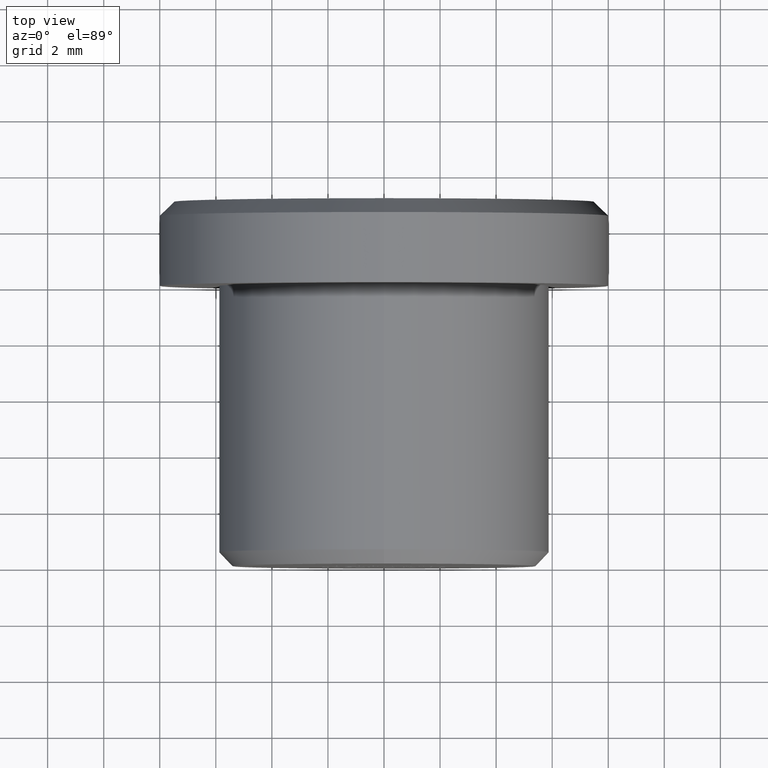
[diagram: clean part render]
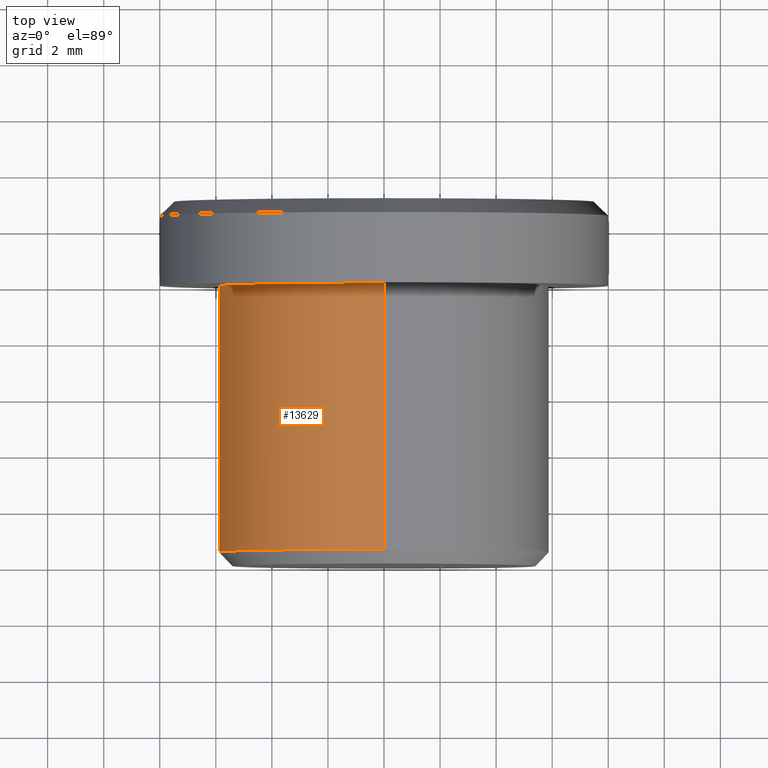
[diagram: same view with one face highlighted and labeled with its STEP entity id]
A machine part, top view. The second image highlights one B-rep face of the part: STEP entity #13629.
In plain terms, the highlighted cylindrical surface (partial cylindrical patch) has radius 5.9 mm, axis along (-0, -1, -0).
Its self-contained STEP definition (entity closure, byte-faithful):
#1902 = AXIS2_PLACEMENT_3D ( 'NONE', #11157, #7902, #2215 ) ;
#2118 = CARTESIAN_POINT ( 'NONE',  ( 7.225416114969384200E-016, 10.00000000000000000, 5.899999999999998600 ) ) ;
#2215 = DIRECTION ( 'NONE',  ( 0.0000000000000000000, 0.0000000000000000000, -1.000000000000000000 ) ) ;
#2434 = CARTESIAN_POINT ( 'NONE',  ( 0.0000000000000000000, 0.0000000000000000000, -5.899999999999999500 ) ) ;
#2652 = CARTESIAN_POINT ( 'NONE',  ( 0.0000000000000000000, 10.00000000000000000, -5.899999999999998600 ) ) ;
#2745 = LINE ( 'NONE', #8405, #10524 ) ;
#4050 = CARTESIAN_POINT ( 'NONE',  ( 0.0000000000000000000, 0.5000000000000004400, -5.899999999999999500 ) ) ;
#4369 = ORIENTED_EDGE ( 'NONE', *, *, #7985, .T. ) ;
#4796 = VECTOR ( 'NONE', #4821, 1000.000000000000000 ) ;
#4821 = DIRECTION ( 'NONE',  ( -0.0000000000000000000, -1.000000000000000000, -0.0000000000000000000 ) ) ;
#4957 = FACE_OUTER_BOUND ( 'NONE', #13746, .T. ) ;
#5622 = DIRECTION ( 'NONE',  ( -0.0000000000000000000, -1.000000000000000000, -0.0000000000000000000 ) ) ;
#5722 = VERTEX_POINT ( 'NONE', #2118 ) ;
#6335 = EDGE_CURVE ( 'NONE', #5722, #10178, #2745, .T. ) ;
#7034 = EDGE_CURVE ( 'NONE', #5722, #7459, #10164, .T. ) ;
#7085 = CYLINDRICAL_SURFACE ( 'NONE', #13212, 5.899999999999999500 ) ;
#7459 = VERTEX_POINT ( 'NONE', #2652 ) ;
#7902 = DIRECTION ( 'NONE',  ( -0.0000000000000000000, -1.000000000000000000, -0.0000000000000000000 ) ) ;
#7985 = EDGE_CURVE ( 'NONE', #9569, #10178, #13517, .T. ) ;
#8405 = CARTESIAN_POINT ( 'NONE',  ( 7.225416114969384200E-016, 0.0000000000000000000, 5.899999999999999500 ) ) ;
#8660 = DIRECTION ( 'NONE',  ( 0.0000000000000000000, 0.0000000000000000000, -1.000000000000000000 ) ) ;
#8813 = CARTESIAN_POINT ( 'NONE',  ( 7.225416114969384200E-016, 0.5000000000000004400, 5.899999999999999500 ) ) ;
#9335 = ORIENTED_EDGE ( 'NONE', *, *, #13801, .T. ) ;
#9447 = ORIENTED_EDGE ( 'NONE', *, *, #6335, .F. ) ;
#9569 = VERTEX_POINT ( 'NONE', #4050 ) ;
#10164 = CIRCLE ( 'NONE', #1902, 5.899999999999998600 ) ;
#10178 = VERTEX_POINT ( 'NONE', #8813 ) ;
#10353 = AXIS2_PLACEMENT_3D ( 'NONE', #12173, #12227, #8660 ) ;
#10524 = VECTOR ( 'NONE', #12969, 1000.000000000000000 ) ;
#11157 = CARTESIAN_POINT ( 'NONE',  ( 0.0000000000000000000, 10.00000000000000000, 0.0000000000000000000 ) ) ;
#11543 = CARTESIAN_POINT ( 'NONE',  ( 0.0000000000000000000, 0.0000000000000000000, 0.0000000000000000000 ) ) ;
#12143 = ORIENTED_EDGE ( 'NONE', *, *, #7034, .T. ) ;
#12173 = CARTESIAN_POINT ( 'NONE',  ( 0.0000000000000000000, 0.5000000000000004400, 0.0000000000000000000 ) ) ;
#12227 = DIRECTION ( 'NONE',  ( 0.0000000000000000000, 1.000000000000000000, 0.0000000000000000000 ) ) ;
#12969 = DIRECTION ( 'NONE',  ( -0.0000000000000000000, -1.000000000000000000, -0.0000000000000000000 ) ) ;
#13212 = AXIS2_PLACEMENT_3D ( 'NONE', #11543, #5622, #13488 ) ;
#13488 = DIRECTION ( 'NONE',  ( 0.0000000000000000000, 0.0000000000000000000, -1.000000000000000000 ) ) ;
#13517 = CIRCLE ( 'NONE', #10353, 5.899999999999999500 ) ;
#13629 = ADVANCED_FACE ( 'NONE', ( #4957 ), #7085, .T. ) ;
#13746 = EDGE_LOOP ( 'NONE', ( #9447, #12143, #9335, #4369 ) ) ;
#13801 = EDGE_CURVE ( 'NONE', #7459, #9569, #14654, .T. ) ;
#14654 = LINE ( 'NONE', #2434, #4796 ) ;